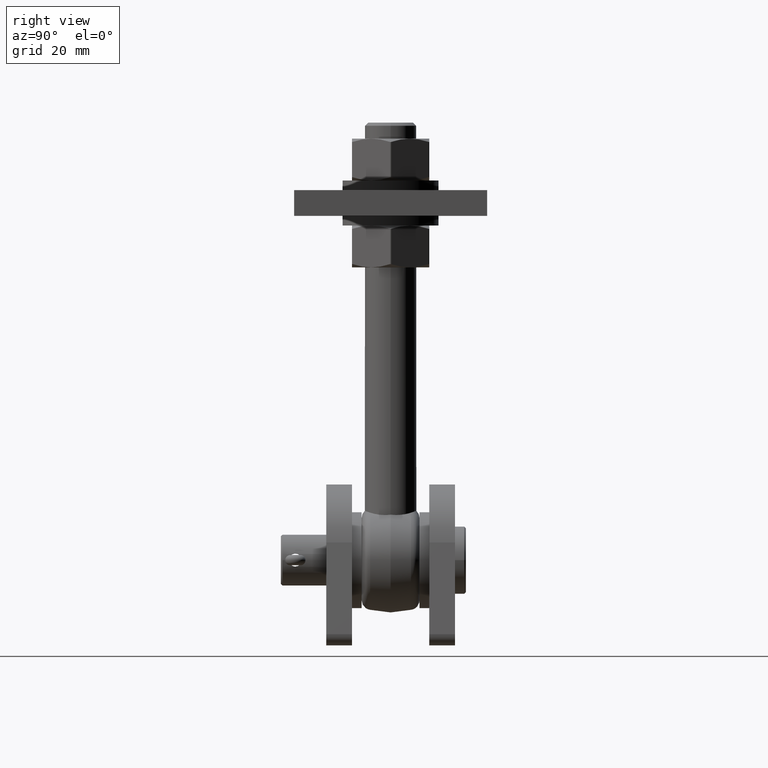
[diagram: clean part render]
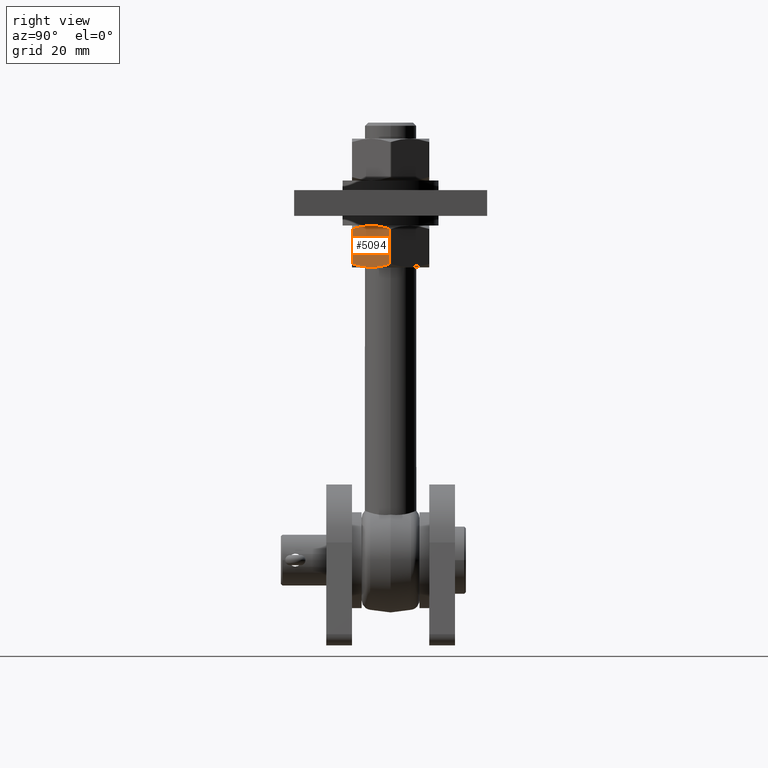
[diagram: same view with one face highlighted and labeled with its STEP entity id]
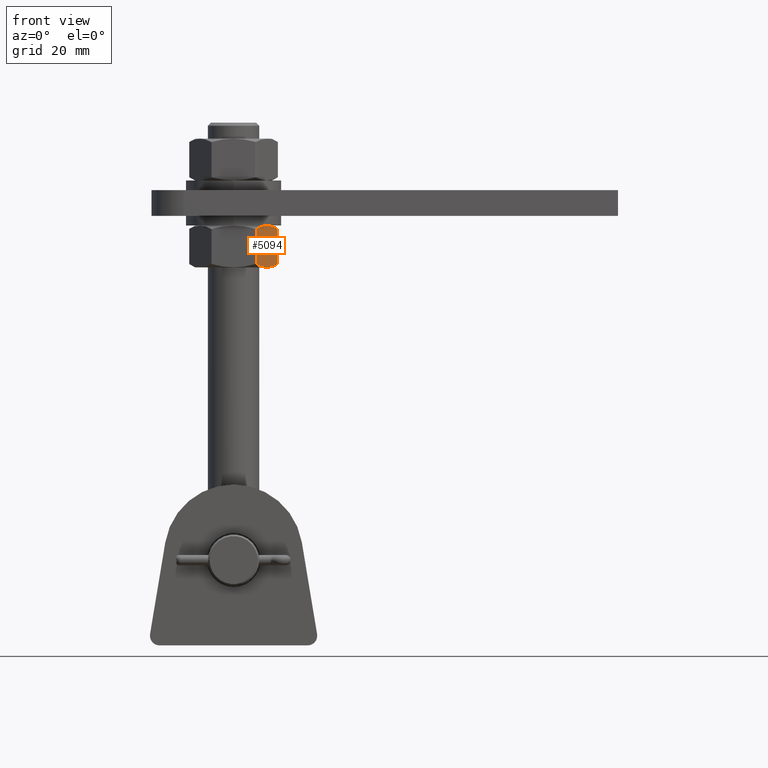
[diagram: same view with one face highlighted and labeled with its STEP entity id]
A machine part, right view. The second image highlights one B-rep face of the part: STEP entity #5094.
A second angle (front view) of the same face is appended — the face is thin or edge-on in the first view.
In plain terms, the highlighted planar face has unit normal (-0.866, 0.5, 0).
Its self-contained STEP definition (entity closure, byte-faithful):
#221 = CARTESIAN_POINT ( 'NONE',  ( 10.95658457648184658, 6.476788126677501367, -5.022638836107909732 ) ) ;
#270 = CARTESIAN_POINT ( 'NONE',  ( 11.51623569666507763, 6.386760395136424684, -4.053294661437721658 ) ) ;
#838 = CARTESIAN_POINT ( 'NONE',  ( 9.827162648512342003, 6.500000000000014211, -6.978854998533490672 ) ) ;
#1076 = CARTESIAN_POINT ( 'NONE',  ( 13.71206889325361189, 5.510220883462368491, -0.2499999999999974465 ) ) ;
#1224 = VERTEX_POINT ( 'NONE', #12116 ) ;
#1355 = CARTESIAN_POINT ( 'NONE',  ( 12.62355850601880292, 6.062063013138936363, -2.135355295257160613 ) ) ;
#1658 = ORIENTED_EDGE ( 'NONE', *, *, #6830, .T. ) ;
#1809 = CARTESIAN_POINT ( 'NONE',  ( 7.615867869546497637, 5.813954435900760664, -10.80892990621412153 ) ) ;
#1953 = CARTESIAN_POINT ( 'NONE',  ( 9.268740651451333079, 6.406434174578382823, -7.946070269507237605 ) ) ;
#2043 = CARTESIAN_POINT ( 'NONE',  ( 10.39230484541326938, -6.500000000000005329, -5.999999999999998224 ) ) ;
#2763 = B_SPLINE_CURVE_WITH_KNOTS ( 'NONE', 3,
 ( #12432, #3845, #4906, #13798, #3792, #13892, #7103, #7148 ),
 .UNSPECIFIED., .F., .F.,
 ( 4, 2, 2, 4 ),
 ( 0.007010445034807149915, 0.008682192066603526548, 0.01035393909839990578, 0.01369743316199265905 ),
 .UNSPECIFIED. ) ;
#3792 = CARTESIAN_POINT ( 'NONE',  ( 8.990347189129836991, -6.320028020092784082, -8.428261890743076634 ) ) ;
#3797 = ORIENTED_EDGE ( 'NONE', *, *, #12042, .T. ) ;
#3845 = CARTESIAN_POINT ( 'NONE',  ( 10.11082040635887580, -6.500000000000014211, -6.487545349982224430 ) ) ;
#4067 = EDGE_LOOP ( 'NONE', ( #3797, #4457, #1658, #13570, #11502, #6044 ) ) ;
#4126 = CARTESIAN_POINT ( 'NONE',  ( 11.51586903937519679, -6.406434174578384599, -4.053929730492755290 ) ) ;
#4231 = CARTESIAN_POINT ( 'NONE',  ( 8.163129901979042202, 6.062901251027059679, -9.861044260987551269 ) ) ;
#4304 = DIRECTION ( 'NONE',  ( -0.8660254037844382635, 0.000000000000000000, 0.5000000000000008882 ) ) ;
#4322 = EDGE_CURVE ( 'NONE', #11453, #9493, #5491, .T. ) ;
#4457 = ORIENTED_EDGE ( 'NONE', *, *, #4322, .T. ) ;
#4906 = CARTESIAN_POINT ( 'NONE',  ( 9.828025114344686841, -6.476788126677502255, -6.977361163892073392 ) ) ;
#4951 = CARTESIAN_POINT ( 'NONE',  ( 13.71206889325393341, -5.510220883462202401, -0.2499999999994518274 ) ) ;
#4998 = LINE ( 'NONE', #13603, #6395 ) ;
#5094 = ADVANCED_FACE ( 'NONE', ( #6357 ), #11963, .F. ) ;
#5491 = LINE ( 'NONE', #14368, #8634 ) ;
#5797 = CARTESIAN_POINT ( 'NONE',  ( 13.71206889325361189, 5.510220883462368491, -0.2499999999999974465 ) ) ;
#5981 = EDGE_CURVE ( 'NONE', #13120, #1224, #2763, .T. ) ;
#6044 = ORIENTED_EDGE ( 'NONE', *, *, #10854, .T. ) ;
#6357 = FACE_OUTER_BOUND ( 'NONE', #4067, .T. ) ;
#6395 = VECTOR ( 'NONE', #7002, 1000.000000000000000 ) ;
#6505 = CARTESIAN_POINT ( 'NONE',  ( 12.62147978884749477, -6.062901251027057903, -2.138955739012437185 ) ) ;
#6560 = CARTESIAN_POINT ( 'NONE',  ( 13.16874182128003135, -5.813954435900757112, -1.191070093785864259 ) ) ;
#6763 = B_SPLINE_CURVE_WITH_KNOTS ( 'NONE', 3,
 ( #9395, #1809, #4231, #1953, #838, #10864 ),
 .UNSPECIFIED., .F., .F.,
 ( 4, 2, 4 ),
 ( 0.0002976420579474647866, 0.003654043546377304559, 0.007010445034807143844 ),
 .UNSPECIFIED. ) ;
#6807 = VERTEX_POINT ( 'NONE', #11050 ) ;
#6830 = EDGE_CURVE ( 'NONE', #9493, #13120, #7140, .T. ) ;
#6907 = CARTESIAN_POINT ( 'NONE',  ( 11.79426250169669466, 6.320028020092783194, -3.571738109256910043 ) ) ;
#7002 = DIRECTION ( 'NONE',  ( -0.000000000000000000, 1.000000000000000000, 1.372308401475337047E-42 ) ) ;
#7103 = CARTESIAN_POINT ( 'NONE',  ( 7.614553384551769888, -5.813219605597463868, -10.81120666101078598 ) ) ;
#7140 = B_SPLINE_CURVE_WITH_KNOTS ( 'NONE', 3,
 ( #12077, #6560, #6505, #4126, #8693, #2043 ),
 .UNSPECIFIED., .F., .F.,
 ( 4, 2, 4 ),
 ( 0.0002976420579474610461, 0.003654043546377305426, 0.007010445034807149915 ),
 .UNSPECIFIED. ) ;
#7148 = CARTESIAN_POINT ( 'NONE',  ( 7.072540797572904658, -5.510220883462424446, -11.74999999999998757 ) ) ;
#7500 = CARTESIAN_POINT ( 'NONE',  ( 10.39230484541326938, -6.500000000000005329, -5.999999999999998224 ) ) ;
#8122 = EDGE_CURVE ( 'NONE', #1224, #6807, #4998, .T. ) ;
#8165 = CARTESIAN_POINT ( 'NONE',  ( 10.39230484541326227, 6.500000000000005329, -5.999999999999998224 ) ) ;
#8167 = VERTEX_POINT ( 'NONE', #8165 ) ;
#8634 = VECTOR ( 'NONE', #11096, 1000.000000000000000 ) ;
#8693 = CARTESIAN_POINT ( 'NONE',  ( 10.95744704231418964, -6.500000000000014211, -5.021145001466503111 ) ) ;
#9395 = CARTESIAN_POINT ( 'NONE',  ( 7.072540797572592908, 5.510220883462202401, -11.75000000000053113 ) ) ;
#9493 = VERTEX_POINT ( 'NONE', #4951 ) ;
#10854 = EDGE_CURVE ( 'NONE', #6807, #8167, #6763, .T. ) ;
#10864 = CARTESIAN_POINT ( 'NONE',  ( 10.39230484541326227, 6.500000000000005329, -5.999999999999998224 ) ) ;
#10939 = CARTESIAN_POINT ( 'NONE',  ( 13.85640646055101755, 6.500000000000005329, 2.748183035367769064E-17 ) ) ;
#11050 = CARTESIAN_POINT ( 'NONE',  ( 7.072540797572592908, 5.510220883462202401, -11.75000000000053113 ) ) ;
#11096 = DIRECTION ( 'NONE',  ( 0.000000000000000000, -1.000000000000000000, -1.372308401475337047E-42 ) ) ;
#11172 = B_SPLINE_CURVE_WITH_KNOTS ( 'NONE', 3,
 ( #11319, #11273, #221, #270, #6907, #1355, #12471, #5797 ),
 .UNSPECIFIED., .F., .F.,
 ( 4, 2, 2, 4 ),
 ( 0.007010445034807143844, 0.008682192066603519609, 0.01035393909839989537, 0.01369743316199264691 ),
 .UNSPECIFIED. ) ;
#11273 = CARTESIAN_POINT ( 'NONE',  ( 10.67378928446765585, 6.500000000000014211, -5.512454650017772018 ) ) ;
#11319 = CARTESIAN_POINT ( 'NONE',  ( 10.39230484541326227, 6.500000000000005329, -5.999999999999998224 ) ) ;
#11453 = VERTEX_POINT ( 'NONE', #1076 ) ;
#11502 = ORIENTED_EDGE ( 'NONE', *, *, #8122, .T. ) ;
#11648 = AXIS2_PLACEMENT_3D ( 'NONE', #10939, #4304, #14208 ) ;
#11963 = PLANE ( 'NONE',  #11648 ) ;
#12042 = EDGE_CURVE ( 'NONE', #8167, #11453, #11172, .T. ) ;
#12077 = CARTESIAN_POINT ( 'NONE',  ( 13.71206889325393341, -5.510220883462202401, -0.2499999999994518274 ) ) ;
#12116 = CARTESIAN_POINT ( 'NONE',  ( 7.072540797572904658, -5.510220883462424446, -11.74999999999998757 ) ) ;
#12432 = CARTESIAN_POINT ( 'NONE',  ( 10.39230484541326938, -6.500000000000005329, -5.999999999999998224 ) ) ;
#12471 = CARTESIAN_POINT ( 'NONE',  ( 13.17005630627476620, 5.813219605597458539, -1.188793338989204251 ) ) ;
#13120 = VERTEX_POINT ( 'NONE', #7500 ) ;
#13570 = ORIENTED_EDGE ( 'NONE', *, *, #5981, .T. ) ;
#13603 = CARTESIAN_POINT ( 'NONE',  ( 7.072540797572905547, 6.500000000000005329, -11.74999999999998934 ) ) ;
#13798 = CARTESIAN_POINT ( 'NONE',  ( 9.268373994161455798, -6.386760395136426460, -7.946705338562263243 ) ) ;
#13892 = CARTESIAN_POINT ( 'NONE',  ( 8.161051184807732284, -6.062063013138934586, -9.864644704742827841 ) ) ;
#14208 = DIRECTION ( 'NONE',  ( 0.5000000000000007772, 0.000000000000000000, 0.8660254037844381525 ) ) ;
#14368 = CARTESIAN_POINT ( 'NONE',  ( 13.71206889325361189, 6.500000000000005329, -0.2499999999999975020 ) ) ;